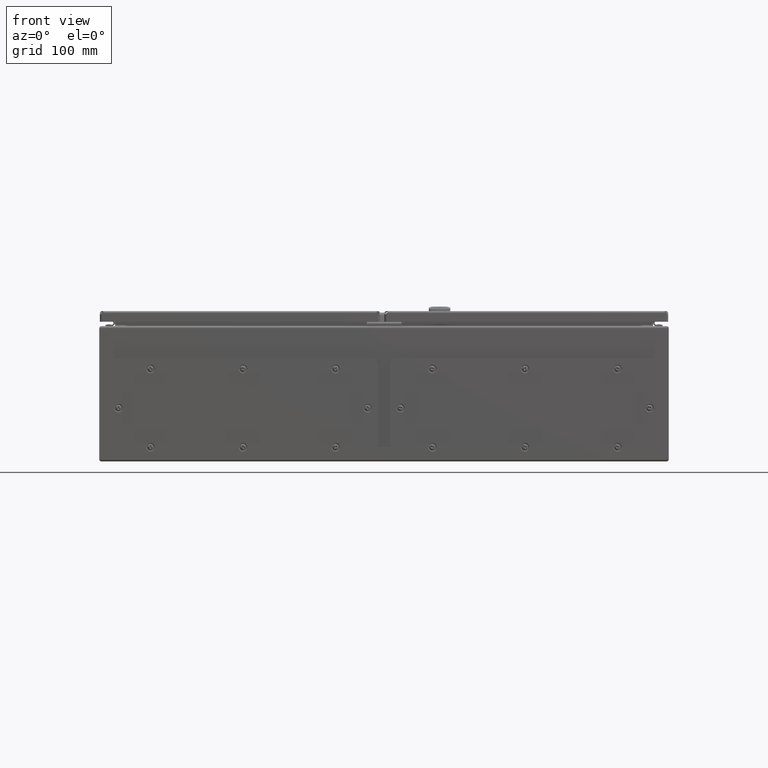
[diagram: clean part render]
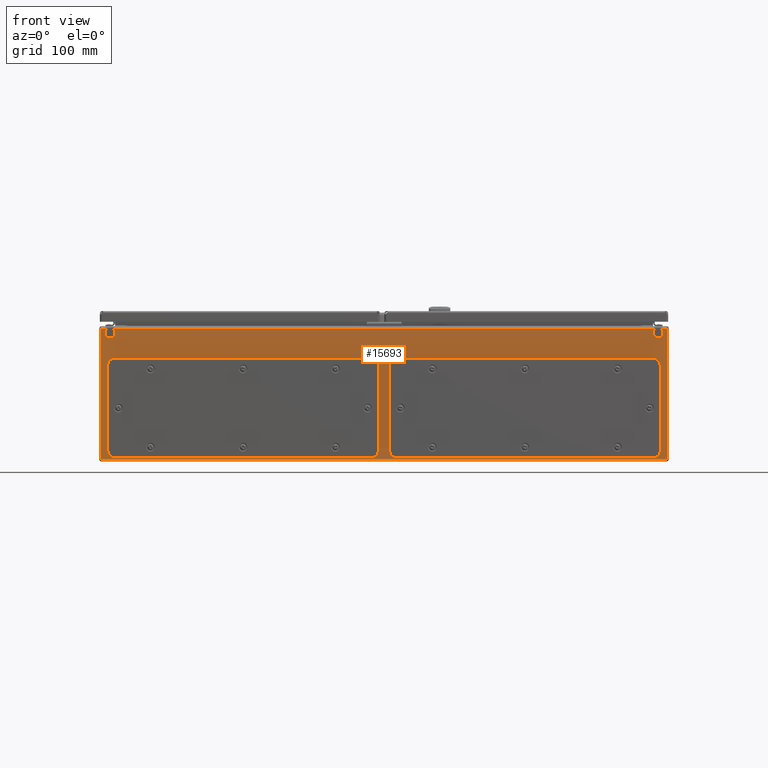
[diagram: same view with one face highlighted and labeled with its STEP entity id]
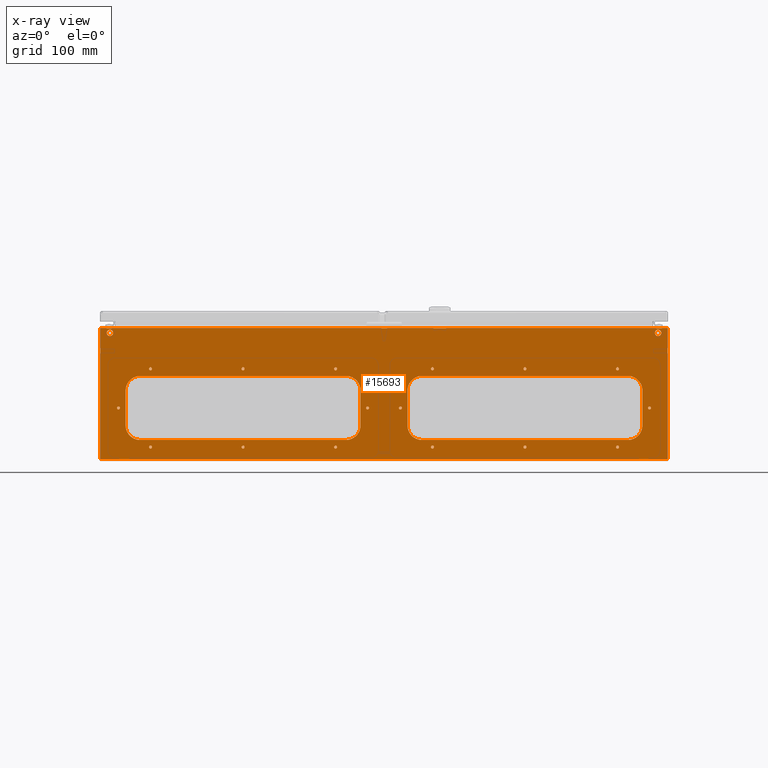
[diagram: x-ray of the same camera — body ghosted, the highlighted face saturated]
A machine part, front view. The second image highlights one B-rep face of the part: STEP entity #15693.
The next image is the same camera in x-ray: the body ghosted, the highlighted face saturated — about 0% of this face is hidden behind the body in this view.
In plain terms, the highlighted planar face has unit normal (-0, -1, 0).
Its self-contained STEP definition (entity closure, byte-faithful):
#1989 = DIRECTION ( 'NONE',  ( 0.0000000000000000000, 0.0000000000000000000, -1.000000000000000000 ) ) ;
#2021 = CARTESIAN_POINT ( 'NONE',  ( 398.4992928932671200, -300.0000000000015300, 188.5000000000000000 ) ) ;
#2476 = DIRECTION ( 'NONE',  ( -0.0000000000000000000, 0.0000000000000000000, 1.000000000000000000 ) ) ;
#2650 = CARTESIAN_POINT ( 'NONE',  ( 363.0000000000005100, -300.0000000000341600, 99.50000000000002800 ) ) ;
#3210 = DIRECTION ( 'NONE',  ( 0.0000000000000000000, -0.0000000000000000000, -1.000000000000000000 ) ) ;
#3394 = CARTESIAN_POINT ( 'NONE',  ( -4383.500000000003600, -300.0000000000006800, 188.5000000000000000 ) ) ;
#3695 = DIRECTION ( 'NONE',  ( -1.836970198721029700E-016, -1.000000000000000000, 0.0000000000000000000 ) ) ;
#3855 = PLANE ( 'NONE',  #17178 ) ;
#4175 = LINE ( 'NONE', #2021, #4520 ) ;
#4520 = VECTOR ( 'NONE', #2476, 1000.000000000000000 ) ;
#4795 = VECTOR ( 'NONE', #1989, 1000.000000000000000 ) ;
#5278 = LINE ( 'NONE', #2650, #4795 ) ;
#5975 = EDGE_CURVE ( 'NONE', #19213, #17569, #5278, .T. ) ;
#5984 = EDGE_CURVE ( 'NONE', #18271, #18908, #4175, .T. ) ;
#6650 = EDGE_CURVE ( 'NONE', #18470, #19195, #43214, .T. ) ;
#6772 = EDGE_CURVE ( 'NONE', #18883, #17805, #41782, .T. ) ;
#6807 = EDGE_CURVE ( 'NONE', #17483, #18226, #42630, .T. ) ;
#6910 = EDGE_CURVE ( 'NONE', #18970, #18381, #42945, .T. ) ;
#7146 = EDGE_CURVE ( 'NONE', #17907, #19082, #43467, .T. ) ;
#7221 = EDGE_CURVE ( 'NONE', #18920, #18999, #42447, .T. ) ;
#7805 = DIRECTION ( 'NONE',  ( -1.836909530733565900E-016, -1.000000000000000000, 4.022547190670858100E-016 ) ) ;
#7907 = DIRECTION ( 'NONE',  ( 0.0000000000000000000, 0.0000000000000000000, -1.000000000000000000 ) ) ;
#8176 = DIRECTION ( 'NONE',  ( 0.0000000000000000000, 0.0000000000000000000, 1.000000000000000000 ) ) ;
#8384 = CARTESIAN_POINT ( 'NONE',  ( -385.0000000000028400, -300.0000000000013100, 180.5000000000329400 ) ) ;
#8601 = DIRECTION ( 'NONE',  ( -1.000000000000000000, 0.0000000000000000000, 0.0000000000000000000 ) ) ;
#9744 = CARTESIAN_POINT ( 'NONE',  ( 328.0000000000004500, -300.0000000000341600, 130.0000000000000300 ) ) ;
#9819 = CARTESIAN_POINT ( 'NONE',  ( -363.0000000000005100, -300.0000000000341600, 99.50000000000002800 ) ) ;
#9967 = DIRECTION ( 'NONE',  ( -1.836909530733565900E-016, 1.000000000000000000, -0.0000000000000000000 ) ) ;
#14408 = VECTOR ( 'NONE', #47759, 1000.000000000000000 ) ;
#14481 = CIRCLE ( 'NONE', #27775, 2.099999999999574200 ) ;
#14493 = CIRCLE ( 'NONE', #27965, 20.49999999999996400 ) ;
#14494 = VECTOR ( 'NONE', #48104, 1000.000000000000000 ) ;
#14514 = CIRCLE ( 'NONE', #27673, 2.099999999999699400 ) ;
#14515 = CIRCLE ( 'NONE', #27458, 2.099999999999713200 ) ;
#14559 = CIRCLE ( 'NONE', #27559, 20.49999999999998900 ) ;
#14669 = CIRCLE ( 'NONE', #27883, 2.099999999999713200 ) ;
#14760 = CIRCLE ( 'NONE', #27909, 2.099999999999987200 ) ;
#14767 = CIRCLE ( 'NONE', #27758, 2.099999999999713200 ) ;
#14807 = CIRCLE ( 'NONE', #27424, 2.099999999999657700 ) ;
#14810 = LINE ( 'NONE', #48085, #14494 ) ;
#14815 = CIRCLE ( 'NONE', #27411, 20.49999999999996400 ) ;
#14847 = CIRCLE ( 'NONE', #27926, 2.099999999999699400 ) ;
#14858 = CIRCLE ( 'NONE', #27720, 2.099999999999657700 ) ;
#14922 = CIRCLE ( 'NONE', #27625, 2.099999999999657700 ) ;
#14953 = VECTOR ( 'NONE', #48042, 1000.000000000000000 ) ;
#14997 = CIRCLE ( 'NONE', #27740, 20.50000000000001800 ) ;
#15006 = CIRCLE ( 'NONE', #27700, 2.099999999999713200 ) ;
#15011 = LINE ( 'NONE', #48034, #14953 ) ;
#15019 = CIRCLE ( 'NONE', #28010, 2.099999999999546700 ) ;
#15182 = CIRCLE ( 'NONE', #28013, 2.099999999999699400 ) ;
#15208 = LINE ( 'NONE', #47739, #14408 ) ;
#15292 = CIRCLE ( 'NONE', #27533, 20.50000000000001800 ) ;
#15322 = CIRCLE ( 'NONE', #28058, 4.500000000000032000 ) ;
#15325 = CIRCLE ( 'NONE', #27309, 2.099999999999987200 ) ;
#15347 = CIRCLE ( 'NONE', #27364, 2.099999999999546700 ) ;
#15386 = CIRCLE ( 'NONE', #27921, 2.099999999999574200 ) ;
#15398 = CIRCLE ( 'NONE', #27678, 20.49999999999999600 ) ;
#15449 = CIRCLE ( 'NONE', #27986, 20.49999999999998900 ) ;
#15693 = ADVANCED_FACE ( 'NONE', ( #38688, #38149, #38101, #38120, #38342, #38074, #38725, #38083, #38011, #38033, #38582, #38113, #38741, #38517, #38090, #38713, #38656, #38804, #38223, #37973, #38645 ), #3855, .T. ) ;
#17103 = AXIS2_PLACEMENT_3D ( 'NONE', #39046, #38944, #39651 ) ;
#17178 = AXIS2_PLACEMENT_3D ( 'NONE', #3394, #3695, #3210 ) ;
#17262 = AXIS2_PLACEMENT_3D ( 'NONE', #26626, #26305, #26669 ) ;
#17375 = VERTEX_POINT ( 'NONE', #46719 ) ;
#17381 = VERTEX_POINT ( 'NONE', #46699 ) ;
#17453 = VERTEX_POINT ( 'NONE', #46912 ) ;
#17466 = VERTEX_POINT ( 'NONE', #46892 ) ;
#17483 = VERTEX_POINT ( 'NONE', #46873 ) ;
#17518 = VERTEX_POINT ( 'NONE', #46848 ) ;
#17569 = VERTEX_POINT ( 'NONE', #46901 ) ;
#17686 = VERTEX_POINT ( 'NONE', #46946 ) ;
#17746 = VERTEX_POINT ( 'NONE', #46782 ) ;
#17805 = VERTEX_POINT ( 'NONE', #46989 ) ;
#17822 = VERTEX_POINT ( 'NONE', #46995 ) ;
#17907 = VERTEX_POINT ( 'NONE', #47035 ) ;
#17911 = VERTEX_POINT ( 'NONE', #47040 ) ;
#17922 = VERTEX_POINT ( 'NONE', #47054 ) ;
#18002 = VERTEX_POINT ( 'NONE', #46974 ) ;
#18005 = VERTEX_POINT ( 'NONE', #46977 ) ;
#18216 = VERTEX_POINT ( 'NONE', #46661 ) ;
#18226 = VERTEX_POINT ( 'NONE', #46662 ) ;
#18239 = VERTEX_POINT ( 'NONE', #46671 ) ;
#18271 = VERTEX_POINT ( 'NONE', #46546 ) ;
#18274 = VERTEX_POINT ( 'NONE', #46547 ) ;
#18277 = VERTEX_POINT ( 'NONE', #46548 ) ;
#18308 = VERTEX_POINT ( 'NONE', #46556 ) ;
#18334 = VERTEX_POINT ( 'NONE', #46580 ) ;
#18381 = VERTEX_POINT ( 'NONE', #46560 ) ;
#18386 = LINE ( 'NONE', #47701, #37748 ) ;
#18390 = VERTEX_POINT ( 'NONE', #46592 ) ;
#18435 = VERTEX_POINT ( 'NONE', #46335 ) ;
#18439 = VERTEX_POINT ( 'NONE', #46336 ) ;
#18470 = VERTEX_POINT ( 'NONE', #46380 ) ;
#18472 = VERTEX_POINT ( 'NONE', #46371 ) ;
#18525 = VERTEX_POINT ( 'NONE', #46413 ) ;
#18533 = VERTEX_POINT ( 'NONE', #46422 ) ;
#18577 = VERTEX_POINT ( 'NONE', #46454 ) ;
#18712 = VERTEX_POINT ( 'NONE', #46105 ) ;
#18817 = VERTEX_POINT ( 'NONE', #51437 ) ;
#18823 = VERTEX_POINT ( 'NONE', #50819 ) ;
#18825 = VERTEX_POINT ( 'NONE', #50172 ) ;
#18836 = VERTEX_POINT ( 'NONE', #50824 ) ;
#18844 = VERTEX_POINT ( 'NONE', #49696 ) ;
#18847 = VERTEX_POINT ( 'NONE', #51562 ) ;
#18851 = VERTEX_POINT ( 'NONE', #51339 ) ;
#18874 = VERTEX_POINT ( 'NONE', #50478 ) ;
#18883 = VERTEX_POINT ( 'NONE', #50076 ) ;
#18908 = VERTEX_POINT ( 'NONE', #49834 ) ;
#18920 = VERTEX_POINT ( 'NONE', #51044 ) ;
#18970 = VERTEX_POINT ( 'NONE', #49664 ) ;
#18995 = VERTEX_POINT ( 'NONE', #51138 ) ;
#18999 = VERTEX_POINT ( 'NONE', #50793 ) ;
#19031 = VERTEX_POINT ( 'NONE', #51682 ) ;
#19050 = VERTEX_POINT ( 'NONE', #49665 ) ;
#19082 = VERTEX_POINT ( 'NONE', #51247 ) ;
#19097 = VERTEX_POINT ( 'NONE', #50264 ) ;
#19109 = VERTEX_POINT ( 'NONE', #51240 ) ;
#19140 = VERTEX_POINT ( 'NONE', #51702 ) ;
#19178 = VERTEX_POINT ( 'NONE', #49990 ) ;
#19194 = VERTEX_POINT ( 'NONE', #51709 ) ;
#19195 = VERTEX_POINT ( 'NONE', #49626 ) ;
#19213 = VERTEX_POINT ( 'NONE', #50105 ) ;
#19562 = AXIS2_PLACEMENT_3D ( 'NONE', #8384, #7805, #8176 ) ;
#20149 = AXIS2_PLACEMENT_3D ( 'NONE', #9744, #9967, #8601 ) ;
#21454 = EDGE_LOOP ( 'NONE', ( #23182, #23099 ) ) ;
#21484 = EDGE_LOOP ( 'NONE', ( #23638, #23498 ) ) ;
#21513 = EDGE_LOOP ( 'NONE', ( #23294, #23075 ) ) ;
#21546 = EDGE_LOOP ( 'NONE', ( #34993, #22936 ) ) ;
#21565 = EDGE_LOOP ( 'NONE', ( #23154, #22817 ) ) ;
#21597 = EDGE_LOOP ( 'NONE', ( #22744, #22847, #23448, #23155, #23107, #23037 ) ) ;
#21613 = EDGE_LOOP ( 'NONE', ( #22924, #23330 ) ) ;
#21622 = EDGE_LOOP ( 'NONE', ( #23608, #22959, #22984, #23323, #23139, #23002, #23492, #23256 ) ) ;
#21625 = EDGE_LOOP ( 'NONE', ( #23267, #23153 ) ) ;
#21724 = EDGE_LOOP ( 'NONE', ( #23436, #54917 ) ) ;
#21730 = EDGE_LOOP ( 'NONE', ( #23522, #22899 ) ) ;
#21782 = EDGE_LOOP ( 'NONE', ( #22711, #23232 ) ) ;
#21799 = EDGE_LOOP ( 'NONE', ( #23621, #23485, #23410, #23471, #23505, #23038, #23597, #22714 ) ) ;
#21907 = EDGE_LOOP ( 'NONE', ( #23368, #22970 ) ) ;
#21981 = EDGE_LOOP ( 'NONE', ( #23484, #23520 ) ) ;
#22042 = EDGE_LOOP ( 'NONE', ( #22824, #22815 ) ) ;
#22285 = EDGE_LOOP ( 'NONE', ( #23176, #23029 ) ) ;
#22307 = EDGE_LOOP ( 'NONE', ( #23003, #23340 ) ) ;
#22391 = EDGE_LOOP ( 'NONE', ( #23062, #23086 ) ) ;
#22465 = EDGE_LOOP ( 'NONE', ( #23655, #22975 ) ) ;
#22484 = EDGE_LOOP ( 'NONE', ( #23392, #23361 ) ) ;
#22711 = ORIENTED_EDGE ( 'NONE', *, *, #56670, .F. ) ;
#22714 = ORIENTED_EDGE ( 'NONE', *, *, #56390, .F. ) ;
#22744 = ORIENTED_EDGE ( 'NONE', *, *, #57472, .F. ) ;
#22815 = ORIENTED_EDGE ( 'NONE', *, *, #56346, .T. ) ;
#22817 = ORIENTED_EDGE ( 'NONE', *, *, #57040, .F. ) ;
#22824 = ORIENTED_EDGE ( 'NONE', *, *, #56608, .T. ) ;
#22847 = ORIENTED_EDGE ( 'NONE', *, *, #57192, .T. ) ;
#22899 = ORIENTED_EDGE ( 'NONE', *, *, #57401, .F. ) ;
#22924 = ORIENTED_EDGE ( 'NONE', *, *, #56530, .F. ) ;
#22936 = ORIENTED_EDGE ( 'NONE', *, *, #57551, .T. ) ;
#22959 = ORIENTED_EDGE ( 'NONE', *, *, #56461, .T. ) ;
#22970 = ORIENTED_EDGE ( 'NONE', *, *, #57200, .F. ) ;
#22975 = ORIENTED_EDGE ( 'NONE', *, *, #56765, .F. ) ;
#22984 = ORIENTED_EDGE ( 'NONE', *, *, #56500, .T. ) ;
#23002 = ORIENTED_EDGE ( 'NONE', *, *, #56842, .T. ) ;
#23003 = ORIENTED_EDGE ( 'NONE', *, *, #7146, .F. ) ;
#23029 = ORIENTED_EDGE ( 'NONE', *, *, #57576, .T. ) ;
#23037 = ORIENTED_EDGE ( 'NONE', *, *, #6650, .T. ) ;
#23038 = ORIENTED_EDGE ( 'NONE', *, *, #56431, .F. ) ;
#23062 = ORIENTED_EDGE ( 'NONE', *, *, #57477, .T. ) ;
#23075 = ORIENTED_EDGE ( 'NONE', *, *, #56386, .T. ) ;
#23086 = ORIENTED_EDGE ( 'NONE', *, *, #57245, .T. ) ;
#23099 = ORIENTED_EDGE ( 'NONE', *, *, #56706, .F. ) ;
#23107 = ORIENTED_EDGE ( 'NONE', *, *, #57274, .T. ) ;
#23139 = ORIENTED_EDGE ( 'NONE', *, *, #56565, .T. ) ;
#23153 = ORIENTED_EDGE ( 'NONE', *, *, #56389, .T. ) ;
#23154 = ORIENTED_EDGE ( 'NONE', *, *, #56527, .F. ) ;
#23155 = ORIENTED_EDGE ( 'NONE', *, *, #5984, .T. ) ;
#23176 = ORIENTED_EDGE ( 'NONE', *, *, #56543, .T. ) ;
#23182 = ORIENTED_EDGE ( 'NONE', *, *, #57009, .F. ) ;
#23232 = ORIENTED_EDGE ( 'NONE', *, *, #56546, .F. ) ;
#23256 = ORIENTED_EDGE ( 'NONE', *, *, #5975, .T. ) ;
#23267 = ORIENTED_EDGE ( 'NONE', *, *, #6772, .T. ) ;
#23294 = ORIENTED_EDGE ( 'NONE', *, *, #56642, .T. ) ;
#23323 = ORIENTED_EDGE ( 'NONE', *, *, #56508, .T. ) ;
#23330 = ORIENTED_EDGE ( 'NONE', *, *, #56366, .F. ) ;
#23340 = ORIENTED_EDGE ( 'NONE', *, *, #57418, .F. ) ;
#23361 = ORIENTED_EDGE ( 'NONE', *, *, #56986, .F. ) ;
#23368 = ORIENTED_EDGE ( 'NONE', *, *, #7221, .F. ) ;
#23392 = ORIENTED_EDGE ( 'NONE', *, *, #56381, .F. ) ;
#23410 = ORIENTED_EDGE ( 'NONE', *, *, #56721, .F. ) ;
#23436 = ORIENTED_EDGE ( 'NONE', *, *, #57133, .F. ) ;
#23448 = ORIENTED_EDGE ( 'NONE', *, *, #56496, .T. ) ;
#23471 = ORIENTED_EDGE ( 'NONE', *, *, #56655, .F. ) ;
#23484 = ORIENTED_EDGE ( 'NONE', *, *, #57241, .T. ) ;
#23485 = ORIENTED_EDGE ( 'NONE', *, *, #56716, .F. ) ;
#23492 = ORIENTED_EDGE ( 'NONE', *, *, #56703, .T. ) ;
#23498 = ORIENTED_EDGE ( 'NONE', *, *, #56652, .T. ) ;
#23505 = ORIENTED_EDGE ( 'NONE', *, *, #6910, .F. ) ;
#23520 = ORIENTED_EDGE ( 'NONE', *, *, #56503, .T. ) ;
#23522 = ORIENTED_EDGE ( 'NONE', *, *, #56438, .F. ) ;
#23597 = ORIENTED_EDGE ( 'NONE', *, *, #57554, .F. ) ;
#23608 = ORIENTED_EDGE ( 'NONE', *, *, #56433, .T. ) ;
#23621 = ORIENTED_EDGE ( 'NONE', *, *, #57269, .F. ) ;
#23638 = ORIENTED_EDGE ( 'NONE', *, *, #56649, .T. ) ;
#23655 = ORIENTED_EDGE ( 'NONE', *, *, #6807, .F. ) ;
#26305 = DIRECTION ( 'NONE',  ( -1.836909530733565900E-016, -1.000000000000000000, 0.0000000000000000000 ) ) ;
#26626 = CARTESIAN_POINT ( 'NONE',  ( -373.0000000000005100, -300.0000000000341600, 75.00000000000000000 ) ) ;
#26669 = DIRECTION ( 'NONE',  ( 1.000000000000000000, 0.0000000000000000000, 0.0000000000000000000 ) ) ;
#27309 = AXIS2_PLACEMENT_3D ( 'NONE', #48174, #48210, #48212 ) ;
#27364 = AXIS2_PLACEMENT_3D ( 'NONE', #49071, #47269, #47266 ) ;
#27368 = AXIS2_PLACEMENT_3D ( 'NONE', #36754, #36758, #36759 ) ;
#27385 = AXIS2_PLACEMENT_3D ( 'NONE', #48443, #48741, #48743 ) ;
#27411 = AXIS2_PLACEMENT_3D ( 'NONE', #47545, #47549, #47547 ) ;
#27424 = AXIS2_PLACEMENT_3D ( 'NONE', #48000, #47991, #47989 ) ;
#27430 = AXIS2_PLACEMENT_3D ( 'NONE', #48802, #48795, #48793 ) ;
#27458 = AXIS2_PLACEMENT_3D ( 'NONE', #48998, #48990, #48696 ) ;
#27487 = AXIS2_PLACEMENT_3D ( 'NONE', #49394, #49381, #49377 ) ;
#27532 = AXIS2_PLACEMENT_3D ( 'NONE', #49507, #49458, #49457 ) ;
#27533 = AXIS2_PLACEMENT_3D ( 'NONE', #47542, #47556, #47558 ) ;
#27545 = AXIS2_PLACEMENT_3D ( 'NONE', #47738, #47732, #47730 ) ;
#27559 = AXIS2_PLACEMENT_3D ( 'NONE', #47381, #47389, #47390 ) ;
#27625 = AXIS2_PLACEMENT_3D ( 'NONE', #47384, #47386, #47387 ) ;
#27628 = AXIS2_PLACEMENT_3D ( 'NONE', #48304, #48301, #48299 ) ;
#27673 = AXIS2_PLACEMENT_3D ( 'NONE', #47224, #47226, #47225 ) ;
#27678 = AXIS2_PLACEMENT_3D ( 'NONE', #48058, #48061, #48062 ) ;
#27700 = AXIS2_PLACEMENT_3D ( 'NONE', #47610, #47608, #47606 ) ;
#27720 = AXIS2_PLACEMENT_3D ( 'NONE', #48291, #48311, #48313 ) ;
#27740 = AXIS2_PLACEMENT_3D ( 'NONE', #47609, #47623, #47625 ) ;
#27753 = AXIS2_PLACEMENT_3D ( 'NONE', #36797, #36796, #36795 ) ;
#27758 = AXIS2_PLACEMENT_3D ( 'NONE', #47232, #47241, #49227 ) ;
#27775 = AXIS2_PLACEMENT_3D ( 'NONE', #48287, #48293, #48295 ) ;
#27805 = AXIS2_PLACEMENT_3D ( 'NONE', #49129, #49128, #49127 ) ;
#27808 = AXIS2_PLACEMENT_3D ( 'NONE', #49319, #49419, #49420 ) ;
#27826 = AXIS2_PLACEMENT_3D ( 'NONE', #36806, #36936, #36925 ) ;
#27848 = AXIS2_PLACEMENT_3D ( 'NONE', #36353, #36329, #36331 ) ;
#27850 = AXIS2_PLACEMENT_3D ( 'NONE', #49520, #49511, #49512 ) ;
#27883 = AXIS2_PLACEMENT_3D ( 'NONE', #48224, #48227, #48229 ) ;
#27908 = AXIS2_PLACEMENT_3D ( 'NONE', #48885, #48865, #48866 ) ;
#27909 = AXIS2_PLACEMENT_3D ( 'NONE', #48065, #48078, #48079 ) ;
#27921 = AXIS2_PLACEMENT_3D ( 'NONE', #47363, #47361, #47362 ) ;
#27926 = AXIS2_PLACEMENT_3D ( 'NONE', #47364, #47376, #47377 ) ;
#27965 = AXIS2_PLACEMENT_3D ( 'NONE', #47816, #47803, #47801 ) ;
#27986 = AXIS2_PLACEMENT_3D ( 'NONE', #48567, #48575, #48577 ) ;
#28010 = AXIS2_PLACEMENT_3D ( 'NONE', #48935, #48879, #48878 ) ;
#28013 = AXIS2_PLACEMENT_3D ( 'NONE', #47789, #47782, #47781 ) ;
#28018 = AXIS2_PLACEMENT_3D ( 'NONE', #49342, #49331, #49332 ) ;
#28025 = AXIS2_PLACEMENT_3D ( 'NONE', #48958, #48945, #48941 ) ;
#28042 = AXIS2_PLACEMENT_3D ( 'NONE', #35787, #36375, #36366 ) ;
#28058 = AXIS2_PLACEMENT_3D ( 'NONE', #47575, #47589, #47587 ) ;
#28073 = AXIS2_PLACEMENT_3D ( 'NONE', #49348, #49338, #49339 ) ;
#34993 = ORIENTED_EDGE ( 'NONE', *, *, #57500, .T. ) ;
#35787 = CARTESIAN_POINT ( 'NONE',  ( 68.00000000000045500, -300.0000000000342200, 19.99999999999994300 ) ) ;
#36329 = DIRECTION ( 'NONE',  ( -1.836909530733565900E-016, 1.000000000000000000, -0.0000000000000000000 ) ) ;
#36331 = DIRECTION ( 'NONE',  ( -1.000000000000000000, 0.0000000000000000000, 0.0000000000000000000 ) ) ;
#36353 = CARTESIAN_POINT ( 'NONE',  ( 198.0000000000004500, -300.0000000000341600, 19.99999999999994300 ) ) ;
#36366 = DIRECTION ( 'NONE',  ( -1.000000000000000000, 0.0000000000000000000, 0.0000000000000000000 ) ) ;
#36369 = CARTESIAN_POINT ( 'NONE',  ( -53.50000000000044800, -300.0000000000342200, 120.0000000000000100 ) ) ;
#36370 = DIRECTION ( 'NONE',  ( -1.000000000000000000, 1.920801080666360600E-016, -9.604005403331803200E-017 ) ) ;
#36375 = DIRECTION ( 'NONE',  ( -1.836909530733565900E-016, 1.000000000000000000, -0.0000000000000000000 ) ) ;
#36754 = CARTESIAN_POINT ( 'NONE',  ( -393.4992928932212500, -300.0000000000030700, 186.5018117420096900 ) ) ;
#36758 = DIRECTION ( 'NONE',  ( -6.921730337728899100E-015, 1.000000000000000000, 0.0000000000000000000 ) ) ;
#36759 = DIRECTION ( 'NONE',  ( -1.000000000000000000, -1.110223024623725700E-014, 0.0000000000000000000 ) ) ;
#36795 = DIRECTION ( 'NONE',  ( -1.000000000000000000, 0.0000000000000000000, 0.0000000000000000000 ) ) ;
#36796 = DIRECTION ( 'NONE',  ( -1.836909530733565900E-016, 1.000000000000000000, -0.0000000000000000000 ) ) ;
#36797 = CARTESIAN_POINT ( 'NONE',  ( 328.0000000000004500, -300.0000000000341600, 19.99999999999994300 ) ) ;
#36806 = CARTESIAN_POINT ( 'NONE',  ( 68.00000000000045500, -300.0000000000342200, 19.99999999999994300 ) ) ;
#36925 = DIRECTION ( 'NONE',  ( -1.000000000000000000, 0.0000000000000000000, 0.0000000000000000000 ) ) ;
#36936 = DIRECTION ( 'NONE',  ( -1.836909530733565900E-016, 1.000000000000000000, -0.0000000000000000000 ) ) ;
#37315 = CIRCLE ( 'NONE', #27368, 5.000000000006443700 ) ;
#37385 = VECTOR ( 'NONE', #48118, 1000.000000000000000 ) ;
#37402 = CIRCLE ( 'NONE', #27808, 4.999999999972971000 ) ;
#37406 = CIRCLE ( 'NONE', #27826, 2.099999999999519100 ) ;
#37411 = VECTOR ( 'NONE', #36370, 1000.000000000000000 ) ;
#37425 = CIRCLE ( 'NONE', #27385, 2.099999999999574200 ) ;
#37436 = LINE ( 'NONE', #49312, #37510 ) ;
#37449 = CIRCLE ( 'NONE', #27430, 2.099999999999602200 ) ;
#37510 = VECTOR ( 'NONE', #49313, 1000.000000000000000 ) ;
#37517 = CIRCLE ( 'NONE', #27848, 2.099999999999574200 ) ;
#37534 = CIRCLE ( 'NONE', #28018, 2.099999999999602200 ) ;
#37573 = LINE ( 'NONE', #36369, #37411 ) ;
#37577 = LINE ( 'NONE', #48126, #37385 ) ;
#37616 = CIRCLE ( 'NONE', #27628, 4.500000000000032000 ) ;
#37618 = CIRCLE ( 'NONE', #27805, 2.099999999999602200 ) ;
#37645 = LINE ( 'NONE', #49389, #37874 ) ;
#37667 = CIRCLE ( 'NONE', #27753, 2.099999999999602200 ) ;
#37672 = CIRCLE ( 'NONE', #28073, 2.099999999999987200 ) ;
#37698 = CIRCLE ( 'NONE', #28025, 2.099999999999699400 ) ;
#37734 = CIRCLE ( 'NONE', #27850, 4.500000000000032000 ) ;
#37748 = VECTOR ( 'NONE', #47699, 1000.000000000000000 ) ;
#37751 = CIRCLE ( 'NONE', #27908, 2.099999999999987200 ) ;
#37845 = CIRCLE ( 'NONE', #27487, 2.099999999999519100 ) ;
#37874 = VECTOR ( 'NONE', #49390, 1000.000000000000000 ) ;
#37885 = CIRCLE ( 'NONE', #27532, 2.099999999999546700 ) ;
#37910 = CIRCLE ( 'NONE', #28042, 2.099999999999519100 ) ;
#37973 = FACE_BOUND ( 'NONE', #22391, .T. ) ;
#38011 = FACE_BOUND ( 'NONE', #21565, .T. ) ;
#38033 = FACE_BOUND ( 'NONE', #21799, .T. ) ;
#38074 = FACE_BOUND ( 'NONE', #21730, .T. ) ;
#38083 = FACE_BOUND ( 'NONE', #21613, .T. ) ;
#38090 = FACE_BOUND ( 'NONE', #22484, .T. ) ;
#38101 = FACE_BOUND ( 'NONE', #21513, .T. ) ;
#38113 = FACE_BOUND ( 'NONE', #21782, .T. ) ;
#38120 = FACE_BOUND ( 'NONE', #21981, .T. ) ;
#38149 = FACE_BOUND ( 'NONE', #22042, .T. ) ;
#38168 = CIRCLE ( 'NONE', #27545, 20.49999999999999600 ) ;
#38223 = FACE_BOUND ( 'NONE', #21625, .T. ) ;
#38342 = FACE_OUTER_BOUND ( 'NONE', #21597, .T. ) ;
#38517 = FACE_BOUND ( 'NONE', #21724, .T. ) ;
#38582 = FACE_BOUND ( 'NONE', #21454, .T. ) ;
#38645 = FACE_BOUND ( 'NONE', #21546, .T. ) ;
#38656 = FACE_BOUND ( 'NONE', #21484, .T. ) ;
#38688 = FACE_BOUND ( 'NONE', #22285, .T. ) ;
#38713 = FACE_BOUND ( 'NONE', #21907, .T. ) ;
#38725 = FACE_BOUND ( 'NONE', #22465, .T. ) ;
#38741 = FACE_BOUND ( 'NONE', #22307, .T. ) ;
#38804 = FACE_BOUND ( 'NONE', #21622, .T. ) ;
#38944 = DIRECTION ( 'NONE',  ( -1.836909530733565900E-016, -1.000000000000000000, 0.0000000000000000000 ) ) ;
#39046 = CARTESIAN_POINT ( 'NONE',  ( -68.00000000000045500, -300.0000000000342200, 19.99999999999994300 ) ) ;
#39651 = DIRECTION ( 'NONE',  ( 1.000000000000000000, 0.0000000000000000000, 0.0000000000000000000 ) ) ;
#41782 = CIRCLE ( 'NONE', #20149, 2.099999999999657700 ) ;
#41901 = VECTOR ( 'NONE', #57680, 1000.000000000000000 ) ;
#42177 = VECTOR ( 'NONE', #7907, 1000.000000000000000 ) ;
#42447 = CIRCLE ( 'NONE', #17103, 2.099999999999519100 ) ;
#42630 = CIRCLE ( 'NONE', #19562, 4.500000000000032000 ) ;
#42945 = LINE ( 'NONE', #9819, #42177 ) ;
#43214 = LINE ( 'NONE', #58111, #41901 ) ;
#43467 = CIRCLE ( 'NONE', #17262, 2.099999999999546700 ) ;
#46105 = CARTESIAN_POINT ( 'NONE',  ( -325.9000000000008300, -300.0000000000341600, 19.99999999999994300 ) ) ;
#46335 = CARTESIAN_POINT ( 'NONE',  ( -398.4992928932277300, -300.0000000000030100, 186.5018117420096900 ) ) ;
#46336 = CARTESIAN_POINT ( 'NONE',  ( 325.9000000000008300, -300.0000000000341600, 19.99999999999994300 ) ) ;
#46371 = CARTESIAN_POINT ( 'NONE',  ( 370.9000000000009400, -300.0000000000341600, 75.00000000000000000 ) ) ;
#46380 = CARTESIAN_POINT ( 'NONE',  ( 398.4744118325098700, -299.9999999999975000, 187.0000000000000000 ) ) ;
#46413 = CARTESIAN_POINT ( 'NONE',  ( -200.1000000000001600, -300.0000000000341600, 130.0000000000000600 ) ) ;
#46422 = CARTESIAN_POINT ( 'NONE',  ( -330.1000000000000800, -300.0000000000341600, 19.99999999999994300 ) ) ;
#46454 = CARTESIAN_POINT ( 'NONE',  ( 342.5000000000004500, -300.0000000000341600, 120.0000000000000100 ) ) ;
#46546 = CARTESIAN_POINT ( 'NONE',  ( 398.4992928932671200, -300.0000000000015300, 3.000000000000002700 ) ) ;
#46547 = CARTESIAN_POINT ( 'NONE',  ( 195.9000000000007400, -300.0000000000341600, 130.0000000000000600 ) ) ;
#46548 = CARTESIAN_POINT ( 'NONE',  ( 65.90000000000074500, -300.0000000000342200, 130.0000000000001100 ) ) ;
#46556 = CARTESIAN_POINT ( 'NONE',  ( -195.9000000000007400, -300.0000000000341600, 130.0000000000000600 ) ) ;
#46560 = CARTESIAN_POINT ( 'NONE',  ( -363.0000000000005100, -300.0000000000341600, 50.49999999999997900 ) ) ;
#46580 = CARTESIAN_POINT ( 'NONE',  ( 33.00000000000044100, -300.0000000000014800, 50.50000000000000700 ) ) ;
#46592 = CARTESIAN_POINT ( 'NONE',  ( 25.10000000000039600, -300.0000000000342200, 75.00000000000004300 ) ) ;
#46661 = CARTESIAN_POINT ( 'NONE',  ( 20.90000000000042100, -300.0000000000342200, 75.00000000000004300 ) ) ;
#46662 = CARTESIAN_POINT ( 'NONE',  ( -385.0000000000028400, -300.0000000000013100, 185.0000000000329700 ) ) ;
#46671 = CARTESIAN_POINT ( 'NONE',  ( -53.50000000000044800, -300.0000000000342200, 120.0000000000000100 ) ) ;
#46699 = CARTESIAN_POINT ( 'NONE',  ( 385.0000000000027300, -300.0000000000014800, 185.0000000000330500 ) ) ;
#46719 = CARTESIAN_POINT ( 'NONE',  ( 65.90000000000092900, -300.0000000000342200, 19.99999999999994300 ) ) ;
#46782 = CARTESIAN_POINT ( 'NONE',  ( -330.1000000000001400, -300.0000000000341600, 130.0000000000000300 ) ) ;
#46848 = CARTESIAN_POINT ( 'NONE',  ( 200.1000000000000200, -300.0000000000341600, 19.99999999999994300 ) ) ;
#46873 = CARTESIAN_POINT ( 'NONE',  ( -385.0000000000028400, -300.0000000000013100, 176.0000000000329100 ) ) ;
#46892 = CARTESIAN_POINT ( 'NONE',  ( -20.90000000000042100, -300.0000000000342200, 75.00000000000004300 ) ) ;
#46901 = CARTESIAN_POINT ( 'NONE',  ( 363.0000000000005100, -300.0000000000341600, 50.49999999999997900 ) ) ;
#46912 = CARTESIAN_POINT ( 'NONE',  ( -200.1000000000000200, -300.0000000000341600, 19.99999999999994300 ) ) ;
#46946 = CARTESIAN_POINT ( 'NONE',  ( 70.10000000000015100, -300.0000000000342200, 130.0000000000001100 ) ) ;
#46974 = CARTESIAN_POINT ( 'NONE',  ( -70.10000000000015100, -300.0000000000342200, 130.0000000000001100 ) ) ;
#46977 = CARTESIAN_POINT ( 'NONE',  ( 200.1000000000001600, -300.0000000000341600, 130.0000000000000600 ) ) ;
#46989 = CARTESIAN_POINT ( 'NONE',  ( 325.9000000000007700, -300.0000000000341600, 130.0000000000000300 ) ) ;
#46995 = CARTESIAN_POINT ( 'NONE',  ( 70.09999999999996600, -300.0000000000342200, 19.99999999999994300 ) ) ;
#47035 = CARTESIAN_POINT ( 'NONE',  ( -370.9000000000009400, -300.0000000000341600, 75.00000000000000000 ) ) ;
#47040 = CARTESIAN_POINT ( 'NONE',  ( -53.50000000000043300, -300.0000000000014800, 30.00000000000002800 ) ) ;
#47054 = CARTESIAN_POINT ( 'NONE',  ( 53.50000000000044800, -300.0000000000342200, 120.0000000000000100 ) ) ;
#47224 = CARTESIAN_POINT ( 'NONE',  ( 68.00000000000045500, -300.0000000000342200, 130.0000000000001100 ) ) ;
#47225 = DIRECTION ( 'NONE',  ( -1.000000000000000000, 0.0000000000000000000, 0.0000000000000000000 ) ) ;
#47226 = DIRECTION ( 'NONE',  ( -1.836909530733565900E-016, 1.000000000000000000, -0.0000000000000000000 ) ) ;
#47232 = CARTESIAN_POINT ( 'NONE',  ( 198.0000000000004500, -300.0000000000341600, 130.0000000000000600 ) ) ;
#47241 = DIRECTION ( 'NONE',  ( -1.836909530733565900E-016, 1.000000000000000000, -0.0000000000000000000 ) ) ;
#47266 = DIRECTION ( 'NONE',  ( -1.000000000000000000, 0.0000000000000000000, 0.0000000000000000000 ) ) ;
#47269 = DIRECTION ( 'NONE',  ( -1.836909530733565900E-016, 1.000000000000000000, -0.0000000000000000000 ) ) ;
#47361 = DIRECTION ( 'NONE',  ( -1.836909530733565900E-016, -1.000000000000000000, 0.0000000000000000000 ) ) ;
#47362 = DIRECTION ( 'NONE',  ( 1.000000000000000000, 0.0000000000000000000, 0.0000000000000000000 ) ) ;
#47363 = CARTESIAN_POINT ( 'NONE',  ( -198.0000000000004500, -300.0000000000341600, 19.99999999999994300 ) ) ;
#47364 = CARTESIAN_POINT ( 'NONE',  ( 68.00000000000045500, -300.0000000000342200, 130.0000000000001100 ) ) ;
#47376 = DIRECTION ( 'NONE',  ( -1.836909530733565900E-016, 1.000000000000000000, -0.0000000000000000000 ) ) ;
#47377 = DIRECTION ( 'NONE',  ( -1.000000000000000000, 0.0000000000000000000, 0.0000000000000000000 ) ) ;
#47381 = CARTESIAN_POINT ( 'NONE',  ( -53.50000000000043300, -300.0000000000342200, 99.50000000000004300 ) ) ;
#47384 = CARTESIAN_POINT ( 'NONE',  ( 328.0000000000004500, -300.0000000000341600, 130.0000000000000300 ) ) ;
#47386 = DIRECTION ( 'NONE',  ( -1.836909530733565900E-016, 1.000000000000000000, -0.0000000000000000000 ) ) ;
#47387 = DIRECTION ( 'NONE',  ( -1.000000000000000000, 0.0000000000000000000, 0.0000000000000000000 ) ) ;
#47389 = DIRECTION ( 'NONE',  ( -1.836909530733565900E-016, -1.000000000000000000, 0.0000000000000000000 ) ) ;
#47390 = DIRECTION ( 'NONE',  ( 1.000000000000000000, 0.0000000000000000000, 0.0000000000000000000 ) ) ;
#47542 = CARTESIAN_POINT ( 'NONE',  ( 342.5000000000004500, -300.0000000000341600, 50.49999999999998600 ) ) ;
#47545 = CARTESIAN_POINT ( 'NONE',  ( -342.5000000000004500, -300.0000000000341600, 99.50000000000001400 ) ) ;
#47547 = DIRECTION ( 'NONE',  ( 1.000000000000000000, 0.0000000000000000000, 0.0000000000000000000 ) ) ;
#47549 = DIRECTION ( 'NONE',  ( -1.836909530733565900E-016, -1.000000000000000000, 0.0000000000000000000 ) ) ;
#47556 = DIRECTION ( 'NONE',  ( -1.836909530733565900E-016, 1.000000000000000000, -0.0000000000000000000 ) ) ;
#47558 = DIRECTION ( 'NONE',  ( -1.000000000000000000, 0.0000000000000000000, 0.0000000000000000000 ) ) ;
#47575 = CARTESIAN_POINT ( 'NONE',  ( 385.0000000000027300, -300.0000000000014800, 180.5000000000330300 ) ) ;
#47587 = DIRECTION ( 'NONE',  ( 0.0000000000000000000, 0.0000000000000000000, -1.000000000000000000 ) ) ;
#47589 = DIRECTION ( 'NONE',  ( -1.836909530733565900E-016, -1.000000000000000000, 4.022547190670858100E-016 ) ) ;
#47606 = DIRECTION ( 'NONE',  ( 1.000000000000000000, 0.0000000000000000000, 0.0000000000000000000 ) ) ;
#47608 = DIRECTION ( 'NONE',  ( -1.836909530733565900E-016, 1.000000000000000000, -0.0000000000000000000 ) ) ;
#47609 = CARTESIAN_POINT ( 'NONE',  ( -342.5000000000004500, -300.0000000000341600, 50.49999999999998600 ) ) ;
#47610 = CARTESIAN_POINT ( 'NONE',  ( 198.0000000000004500, -300.0000000000341600, 130.0000000000000600 ) ) ;
#47623 = DIRECTION ( 'NONE',  ( -1.836909530733565900E-016, -1.000000000000000000, 0.0000000000000000000 ) ) ;
#47625 = DIRECTION ( 'NONE',  ( 1.000000000000000000, 0.0000000000000000000, 0.0000000000000000000 ) ) ;
#47699 = DIRECTION ( 'NONE',  ( 1.000000000000000000, -1.920801080666360600E-016, 1.200500675416475500E-016 ) ) ;
#47701 = CARTESIAN_POINT ( 'NONE',  ( -342.5000000000004500, -300.0000000000341600, 30.00000000000001800 ) ) ;
#47730 = DIRECTION ( 'NONE',  ( 1.000000000000000000, 0.0000000000000000000, 0.0000000000000000000 ) ) ;
#47732 = DIRECTION ( 'NONE',  ( -1.836909530733565900E-016, -1.000000000000000000, 0.0000000000000000000 ) ) ;
#47738 = CARTESIAN_POINT ( 'NONE',  ( -53.50000000000043300, -300.0000000000342200, 50.50000000000002100 ) ) ;
#47739 = CARTESIAN_POINT ( 'NONE',  ( 342.5000000000004500, -300.0000000000341600, 30.00000000000001800 ) ) ;
#47759 = DIRECTION ( 'NONE',  ( -1.000000000000000000, -1.920801080666360600E-016, 1.200500675416475500E-016 ) ) ;
#47781 = DIRECTION ( 'NONE',  ( 1.000000000000000000, 0.0000000000000000000, 0.0000000000000000000 ) ) ;
#47782 = DIRECTION ( 'NONE',  ( -1.836909530733565900E-016, -1.000000000000000000, 0.0000000000000000000 ) ) ;
#47789 = CARTESIAN_POINT ( 'NONE',  ( -68.00000000000045500, -300.0000000000342200, 130.0000000000001100 ) ) ;
#47801 = DIRECTION ( 'NONE',  ( -1.000000000000000000, 0.0000000000000000000, 0.0000000000000000000 ) ) ;
#47803 = DIRECTION ( 'NONE',  ( -1.836909530733565900E-016, 1.000000000000000000, -0.0000000000000000000 ) ) ;
#47816 = CARTESIAN_POINT ( 'NONE',  ( 342.5000000000004500, -300.0000000000341600, 99.50000000000001400 ) ) ;
#47989 = DIRECTION ( 'NONE',  ( 1.000000000000000000, 0.0000000000000000000, 0.0000000000000000000 ) ) ;
#47991 = DIRECTION ( 'NONE',  ( -1.836909530733565900E-016, -1.000000000000000000, 0.0000000000000000000 ) ) ;
#48000 = CARTESIAN_POINT ( 'NONE',  ( -328.0000000000004500, -300.0000000000341600, 130.0000000000000300 ) ) ;
#48034 = CARTESIAN_POINT ( 'NONE',  ( -4383.500000000003600, -300.0000000000006800, 3.000000000000002700 ) ) ;
#48042 = DIRECTION ( 'NONE',  ( 1.000000000000000000, -1.836970198721029700E-016, 0.0000000000000000000 ) ) ;
#48058 = CARTESIAN_POINT ( 'NONE',  ( 53.50000000000043300, -300.0000000000342200, 50.50000000000002100 ) ) ;
#48061 = DIRECTION ( 'NONE',  ( -1.836909530733565900E-016, 1.000000000000000000, -0.0000000000000000000 ) ) ;
#48062 = DIRECTION ( 'NONE',  ( -1.000000000000000000, 0.0000000000000000000, 0.0000000000000000000 ) ) ;
#48065 = CARTESIAN_POINT ( 'NONE',  ( 23.00000000000040900, -300.0000000000342200, 75.00000000000004300 ) ) ;
#48078 = DIRECTION ( 'NONE',  ( -1.836909530733565900E-016, 1.000000000000000000, -0.0000000000000000000 ) ) ;
#48079 = DIRECTION ( 'NONE',  ( 1.000000000000000000, 0.0000000000000000000, 0.0000000000000000000 ) ) ;
#48085 = CARTESIAN_POINT ( 'NONE',  ( 33.00000000000041900, -300.0000000000342200, 50.50000000000000700 ) ) ;
#48104 = DIRECTION ( 'NONE',  ( 0.0000000000000000000, 0.0000000000000000000, 1.000000000000000000 ) ) ;
#48118 = DIRECTION ( 'NONE',  ( 1.000000000000000000, 1.920801080666360600E-016, -9.604005403331803200E-017 ) ) ;
#48126 = CARTESIAN_POINT ( 'NONE',  ( 53.50000000000044800, -300.0000000000342200, 120.0000000000000100 ) ) ;
#48174 = CARTESIAN_POINT ( 'NONE',  ( -23.00000000000040900, -300.0000000000342200, 75.00000000000004300 ) ) ;
#48210 = DIRECTION ( 'NONE',  ( -1.836909530733565900E-016, -1.000000000000000000, 0.0000000000000000000 ) ) ;
#48212 = DIRECTION ( 'NONE',  ( -1.000000000000000000, 0.0000000000000000000, 0.0000000000000000000 ) ) ;
#48224 = CARTESIAN_POINT ( 'NONE',  ( -198.0000000000004500, -300.0000000000341600, 130.0000000000000600 ) ) ;
#48227 = DIRECTION ( 'NONE',  ( -1.836909530733565900E-016, -1.000000000000000000, 0.0000000000000000000 ) ) ;
#48229 = DIRECTION ( 'NONE',  ( -1.000000000000000000, 0.0000000000000000000, 0.0000000000000000000 ) ) ;
#48287 = CARTESIAN_POINT ( 'NONE',  ( 198.0000000000004500, -300.0000000000341600, 19.99999999999994300 ) ) ;
#48291 = CARTESIAN_POINT ( 'NONE',  ( -328.0000000000004500, -300.0000000000341600, 130.0000000000000300 ) ) ;
#48293 = DIRECTION ( 'NONE',  ( -1.836909530733565900E-016, 1.000000000000000000, -0.0000000000000000000 ) ) ;
#48295 = DIRECTION ( 'NONE',  ( -1.000000000000000000, 0.0000000000000000000, 0.0000000000000000000 ) ) ;
#48299 = DIRECTION ( 'NONE',  ( 0.0000000000000000000, 0.0000000000000000000, 1.000000000000000000 ) ) ;
#48301 = DIRECTION ( 'NONE',  ( -1.836909530733565900E-016, -1.000000000000000000, 4.022547190670858100E-016 ) ) ;
#48304 = CARTESIAN_POINT ( 'NONE',  ( -385.0000000000028400, -300.0000000000013100, 180.5000000000329400 ) ) ;
#48311 = DIRECTION ( 'NONE',  ( -1.836909530733565900E-016, -1.000000000000000000, 0.0000000000000000000 ) ) ;
#48313 = DIRECTION ( 'NONE',  ( 1.000000000000000000, 0.0000000000000000000, 0.0000000000000000000 ) ) ;
#48443 = CARTESIAN_POINT ( 'NONE',  ( -198.0000000000004500, -300.0000000000341600, 19.99999999999994300 ) ) ;
#48567 = CARTESIAN_POINT ( 'NONE',  ( 53.50000000000043300, -300.0000000000342200, 99.50000000000004300 ) ) ;
#48575 = DIRECTION ( 'NONE',  ( -1.836909530733565900E-016, 1.000000000000000000, -0.0000000000000000000 ) ) ;
#48577 = DIRECTION ( 'NONE',  ( -1.000000000000000000, 0.0000000000000000000, 0.0000000000000000000 ) ) ;
#48696 = DIRECTION ( 'NONE',  ( -1.000000000000000000, 0.0000000000000000000, 0.0000000000000000000 ) ) ;
#48741 = DIRECTION ( 'NONE',  ( -1.836909530733565900E-016, -1.000000000000000000, 0.0000000000000000000 ) ) ;
#48743 = DIRECTION ( 'NONE',  ( 1.000000000000000000, 0.0000000000000000000, 0.0000000000000000000 ) ) ;
#48793 = DIRECTION ( 'NONE',  ( 1.000000000000000000, 0.0000000000000000000, 0.0000000000000000000 ) ) ;
#48795 = DIRECTION ( 'NONE',  ( -1.836909530733565900E-016, -1.000000000000000000, 0.0000000000000000000 ) ) ;
#48802 = CARTESIAN_POINT ( 'NONE',  ( -328.0000000000004500, -300.0000000000341600, 19.99999999999994300 ) ) ;
#48865 = DIRECTION ( 'NONE',  ( -1.836909530733565900E-016, -1.000000000000000000, 0.0000000000000000000 ) ) ;
#48866 = DIRECTION ( 'NONE',  ( -1.000000000000000000, 0.0000000000000000000, 0.0000000000000000000 ) ) ;
#48878 = DIRECTION ( 'NONE',  ( -1.000000000000000000, 0.0000000000000000000, 0.0000000000000000000 ) ) ;
#48879 = DIRECTION ( 'NONE',  ( -1.836909530733565900E-016, 1.000000000000000000, -0.0000000000000000000 ) ) ;
#48885 = CARTESIAN_POINT ( 'NONE',  ( -23.00000000000040900, -300.0000000000342200, 75.00000000000004300 ) ) ;
#48935 = CARTESIAN_POINT ( 'NONE',  ( 373.0000000000005100, -300.0000000000341600, 75.00000000000000000 ) ) ;
#48941 = DIRECTION ( 'NONE',  ( 1.000000000000000000, 0.0000000000000000000, 0.0000000000000000000 ) ) ;
#48945 = DIRECTION ( 'NONE',  ( -1.836909530733565900E-016, -1.000000000000000000, 0.0000000000000000000 ) ) ;
#48958 = CARTESIAN_POINT ( 'NONE',  ( -68.00000000000045500, -300.0000000000342200, 130.0000000000001100 ) ) ;
#48990 = DIRECTION ( 'NONE',  ( -1.836909530733565900E-016, -1.000000000000000000, 0.0000000000000000000 ) ) ;
#48998 = CARTESIAN_POINT ( 'NONE',  ( -198.0000000000004500, -300.0000000000341600, 130.0000000000000600 ) ) ;
#49071 = CARTESIAN_POINT ( 'NONE',  ( 373.0000000000005100, -300.0000000000341600, 75.00000000000000000 ) ) ;
#49127 = DIRECTION ( 'NONE',  ( 1.000000000000000000, 0.0000000000000000000, 0.0000000000000000000 ) ) ;
#49128 = DIRECTION ( 'NONE',  ( -1.836909530733565900E-016, -1.000000000000000000, 0.0000000000000000000 ) ) ;
#49129 = CARTESIAN_POINT ( 'NONE',  ( -328.0000000000004500, -300.0000000000341600, 19.99999999999994300 ) ) ;
#49227 = DIRECTION ( 'NONE',  ( 1.000000000000000000, 0.0000000000000000000, 0.0000000000000000000 ) ) ;
#49312 = CARTESIAN_POINT ( 'NONE',  ( -33.00000000000041900, -300.0000000000342200, 50.50000000000000700 ) ) ;
#49313 = DIRECTION ( 'NONE',  ( 0.0000000000000000000, 0.0000000000000000000, 1.000000000000000000 ) ) ;
#49319 = CARTESIAN_POINT ( 'NONE',  ( 393.4992928932954300, -299.9999999999975600, 186.5018117420097200 ) ) ;
#49331 = DIRECTION ( 'NONE',  ( -1.836909530733565900E-016, 1.000000000000000000, -0.0000000000000000000 ) ) ;
#49332 = DIRECTION ( 'NONE',  ( -1.000000000000000000, 0.0000000000000000000, 0.0000000000000000000 ) ) ;
#49338 = DIRECTION ( 'NONE',  ( -1.836909530733565900E-016, 1.000000000000000000, -0.0000000000000000000 ) ) ;
#49339 = DIRECTION ( 'NONE',  ( 1.000000000000000000, 0.0000000000000000000, 0.0000000000000000000 ) ) ;
#49342 = CARTESIAN_POINT ( 'NONE',  ( 328.0000000000004500, -300.0000000000341600, 19.99999999999994300 ) ) ;
#49348 = CARTESIAN_POINT ( 'NONE',  ( 23.00000000000040900, -300.0000000000342200, 75.00000000000004300 ) ) ;
#49377 = DIRECTION ( 'NONE',  ( 1.000000000000000000, 0.0000000000000000000, 0.0000000000000000000 ) ) ;
#49381 = DIRECTION ( 'NONE',  ( -1.836909530733565900E-016, -1.000000000000000000, 0.0000000000000000000 ) ) ;
#49389 = CARTESIAN_POINT ( 'NONE',  ( -398.4992928931894200, -300.0000000000013600, 188.5000000000000000 ) ) ;
#49390 = DIRECTION ( 'NONE',  ( 0.0000000000000000000, -0.0000000000000000000, -1.000000000000000000 ) ) ;
#49394 = CARTESIAN_POINT ( 'NONE',  ( -68.00000000000045500, -300.0000000000342200, 19.99999999999994300 ) ) ;
#49419 = DIRECTION ( 'NONE',  ( 6.913312427082022300E-015, -1.000000000000000000, 6.123233995736766000E-017 ) ) ;
#49420 = DIRECTION ( 'NONE',  ( 1.000000000000000000, 1.110223024631158200E-014, 0.0000000000000000000 ) ) ;
#49457 = DIRECTION ( 'NONE',  ( 1.000000000000000000, 0.0000000000000000000, 0.0000000000000000000 ) ) ;
#49458 = DIRECTION ( 'NONE',  ( -1.836909530733565900E-016, -1.000000000000000000, 0.0000000000000000000 ) ) ;
#49507 = CARTESIAN_POINT ( 'NONE',  ( -373.0000000000005100, -300.0000000000341600, 75.00000000000000000 ) ) ;
#49511 = DIRECTION ( 'NONE',  ( -1.836909530733565900E-016, -1.000000000000000000, 4.022547190670858100E-016 ) ) ;
#49512 = DIRECTION ( 'NONE',  ( 0.0000000000000000000, 0.0000000000000000000, -1.000000000000000000 ) ) ;
#49520 = CARTESIAN_POINT ( 'NONE',  ( 385.0000000000027300, -300.0000000000014800, 180.5000000000330300 ) ) ;
#49626 = CARTESIAN_POINT ( 'NONE',  ( -398.4744118324693400, -300.0000000000030700, 187.0000000000000000 ) ) ;
#49664 = CARTESIAN_POINT ( 'NONE',  ( -363.0000000000005100, -300.0000000000341600, 99.50000000000002800 ) ) ;
#49665 = CARTESIAN_POINT ( 'NONE',  ( -342.5000000000004500, -300.0000000000341600, 120.0000000000000100 ) ) ;
#49696 = CARTESIAN_POINT ( 'NONE',  ( 330.1000000000000800, -300.0000000000341600, 19.99999999999994300 ) ) ;
#49834 = CARTESIAN_POINT ( 'NONE',  ( 398.4992928932683800, -299.9999999999975000, 186.5018117420097200 ) ) ;
#49990 = CARTESIAN_POINT ( 'NONE',  ( -325.9000000000007700, -300.0000000000341600, 130.0000000000000300 ) ) ;
#50076 = CARTESIAN_POINT ( 'NONE',  ( 330.1000000000001400, -300.0000000000341600, 130.0000000000000300 ) ) ;
#50105 = CARTESIAN_POINT ( 'NONE',  ( 363.0000000000005100, -300.0000000000341600, 99.50000000000002800 ) ) ;
#50172 = CARTESIAN_POINT ( 'NONE',  ( 53.50000000000043300, -300.0000000000342200, 30.00000000000005000 ) ) ;
#50264 = CARTESIAN_POINT ( 'NONE',  ( -25.10000000000039600, -300.0000000000342200, 75.00000000000004300 ) ) ;
#50478 = CARTESIAN_POINT ( 'NONE',  ( 385.0000000000027300, -300.0000000000014800, 176.0000000000330000 ) ) ;
#50793 = CARTESIAN_POINT ( 'NONE',  ( -70.09999999999996600, -300.0000000000342200, 19.99999999999994300 ) ) ;
#50819 = CARTESIAN_POINT ( 'NONE',  ( 33.00000000000044800, -300.0000000000342200, 99.50000000000007100 ) ) ;
#50824 = CARTESIAN_POINT ( 'NONE',  ( -195.9000000000008900, -300.0000000000341600, 19.99999999999994300 ) ) ;
#51044 = CARTESIAN_POINT ( 'NONE',  ( -65.90000000000092900, -300.0000000000342200, 19.99999999999994300 ) ) ;
#51138 = CARTESIAN_POINT ( 'NONE',  ( 375.1000000000000200, -300.0000000000341600, 75.00000000000000000 ) ) ;
#51240 = CARTESIAN_POINT ( 'NONE',  ( 195.9000000000008900, -300.0000000000341600, 19.99999999999994300 ) ) ;
#51247 = CARTESIAN_POINT ( 'NONE',  ( -375.1000000000000200, -300.0000000000341600, 75.00000000000000000 ) ) ;
#51339 = CARTESIAN_POINT ( 'NONE',  ( -33.00000000000041900, -300.0000000000342200, 50.50000000000000700 ) ) ;
#51437 = CARTESIAN_POINT ( 'NONE',  ( -342.5000000000004500, -300.0000000000341600, 30.00000000000001800 ) ) ;
#51562 = CARTESIAN_POINT ( 'NONE',  ( -33.00000000000044800, -300.0000000000342200, 99.50000000000007100 ) ) ;
#51682 = CARTESIAN_POINT ( 'NONE',  ( -398.4992928931894200, -300.0000000000013600, 3.000000000000002700 ) ) ;
#51702 = CARTESIAN_POINT ( 'NONE',  ( 342.5000000000004500, -300.0000000000341600, 30.00000000000001800 ) ) ;
#51709 = CARTESIAN_POINT ( 'NONE',  ( -65.90000000000074500, -300.0000000000342200, 130.0000000000001100 ) ) ;
#54917 = ORIENTED_EDGE ( 'NONE', *, *, #57067, .F. ) ;
#56346 = EDGE_CURVE ( 'NONE', #18472, #18995, #15019, .T. ) ;
#56366 = EDGE_CURVE ( 'NONE', #18525, #18308, #14515, .T. ) ;
#56381 = EDGE_CURVE ( 'NONE', #18836, #17453, #15386, .T. ) ;
#56386 = EDGE_CURVE ( 'NONE', #18277, #17686, #14847, .T. ) ;
#56389 = EDGE_CURVE ( 'NONE', #17805, #18883, #14922, .T. ) ;
#56390 = EDGE_CURVE ( 'NONE', #18847, #18239, #14559, .T. ) ;
#56431 = EDGE_CURVE ( 'NONE', #19050, #18970, #14815, .T. ) ;
#56433 = EDGE_CURVE ( 'NONE', #17569, #19140, #15292, .T. ) ;
#56438 = EDGE_CURVE ( 'NONE', #18874, #17381, #15322, .T. ) ;
#56461 = EDGE_CURVE ( 'NONE', #19140, #18825, #15208, .T. ) ;
#56496 = EDGE_CURVE ( 'NONE', #19031, #18271, #15011, .T. ) ;
#56500 = EDGE_CURVE ( 'NONE', #18825, #18334, #15398, .T. ) ;
#56503 = EDGE_CURVE ( 'NONE', #18216, #18390, #14760, .T. ) ;
#56508 = EDGE_CURVE ( 'NONE', #18334, #18823, #14810, .T. ) ;
#56527 = EDGE_CURVE ( 'NONE', #17466, #19097, #15325, .T. ) ;
#56530 = EDGE_CURVE ( 'NONE', #18308, #18525, #14669, .T. ) ;
#56543 = EDGE_CURVE ( 'NONE', #17518, #19109, #14481, .T. ) ;
#56546 = EDGE_CURVE ( 'NONE', #17746, #19178, #14858, .T. ) ;
#56565 = EDGE_CURVE ( 'NONE', #18823, #17922, #15449, .T. ) ;
#56608 = EDGE_CURVE ( 'NONE', #18995, #18472, #15347, .T. ) ;
#56642 = EDGE_CURVE ( 'NONE', #17686, #18277, #14514, .T. ) ;
#56649 = EDGE_CURVE ( 'NONE', #18005, #18274, #14767, .T. ) ;
#56652 = EDGE_CURVE ( 'NONE', #18274, #18005, #15006, .T. ) ;
#56655 = EDGE_CURVE ( 'NONE', #18381, #18817, #14997, .T. ) ;
#56670 = EDGE_CURVE ( 'NONE', #19178, #17746, #14807, .T. ) ;
#56703 = EDGE_CURVE ( 'NONE', #18577, #19213, #14493, .T. ) ;
#56706 = EDGE_CURVE ( 'NONE', #18002, #19194, #15182, .T. ) ;
#56716 = EDGE_CURVE ( 'NONE', #17911, #18851, #38168, .T. ) ;
#56721 = EDGE_CURVE ( 'NONE', #18817, #17911, #18386, .T. ) ;
#56765 = EDGE_CURVE ( 'NONE', #18226, #17483, #37616, .T. ) ;
#56842 = EDGE_CURVE ( 'NONE', #17922, #18577, #37577, .T. ) ;
#56986 = EDGE_CURVE ( 'NONE', #17453, #18836, #37425, .T. ) ;
#57009 = EDGE_CURVE ( 'NONE', #19194, #18002, #37698, .T. ) ;
#57040 = EDGE_CURVE ( 'NONE', #19097, #17466, #37751, .T. ) ;
#57067 = EDGE_CURVE ( 'NONE', #18533, #18712, #37449, .T. ) ;
#57133 = EDGE_CURVE ( 'NONE', #18712, #18533, #37618, .T. ) ;
#57192 = EDGE_CURVE ( 'NONE', #18435, #19031, #37645, .T. ) ;
#57200 = EDGE_CURVE ( 'NONE', #18999, #18920, #37845, .T. ) ;
#57241 = EDGE_CURVE ( 'NONE', #18390, #18216, #37672, .T. ) ;
#57245 = EDGE_CURVE ( 'NONE', #18439, #18844, #37534, .T. ) ;
#57269 = EDGE_CURVE ( 'NONE', #18851, #18847, #37436, .T. ) ;
#57274 = EDGE_CURVE ( 'NONE', #18908, #18470, #37402, .T. ) ;
#57401 = EDGE_CURVE ( 'NONE', #17381, #18874, #37734, .T. ) ;
#57418 = EDGE_CURVE ( 'NONE', #19082, #17907, #37885, .T. ) ;
#57472 = EDGE_CURVE ( 'NONE', #18435, #19195, #37315, .T. ) ;
#57477 = EDGE_CURVE ( 'NONE', #18844, #18439, #37667, .T. ) ;
#57500 = EDGE_CURVE ( 'NONE', #17822, #17375, #37406, .T. ) ;
#57551 = EDGE_CURVE ( 'NONE', #17375, #17822, #37910, .T. ) ;
#57554 = EDGE_CURVE ( 'NONE', #18239, #19050, #37573, .T. ) ;
#57576 = EDGE_CURVE ( 'NONE', #19109, #17518, #37517, .T. ) ;
#57680 = DIRECTION ( 'NONE',  ( -1.000000000000000000, 2.089507518127435800E-016, 0.0000000000000000000 ) ) ;
#58111 = CARTESIAN_POINT ( 'NONE',  ( 4383.492221825550600, -300.0000000000023300, 187.0000000000000000 ) ) ;